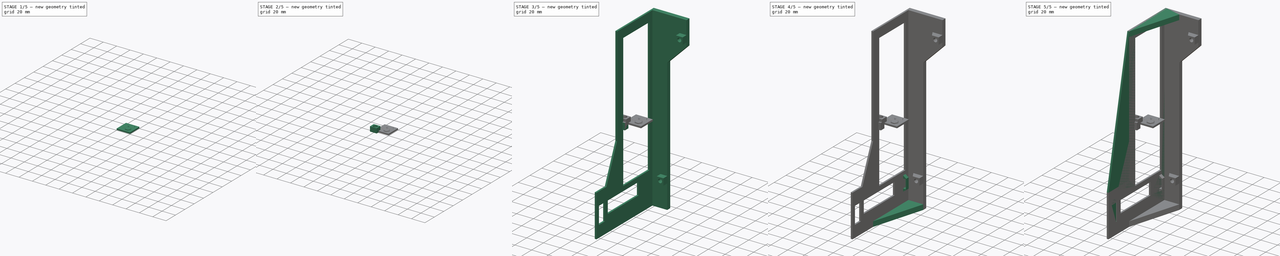
[diagram: build sequence overview — one tinted view per stage of 5, left to right]
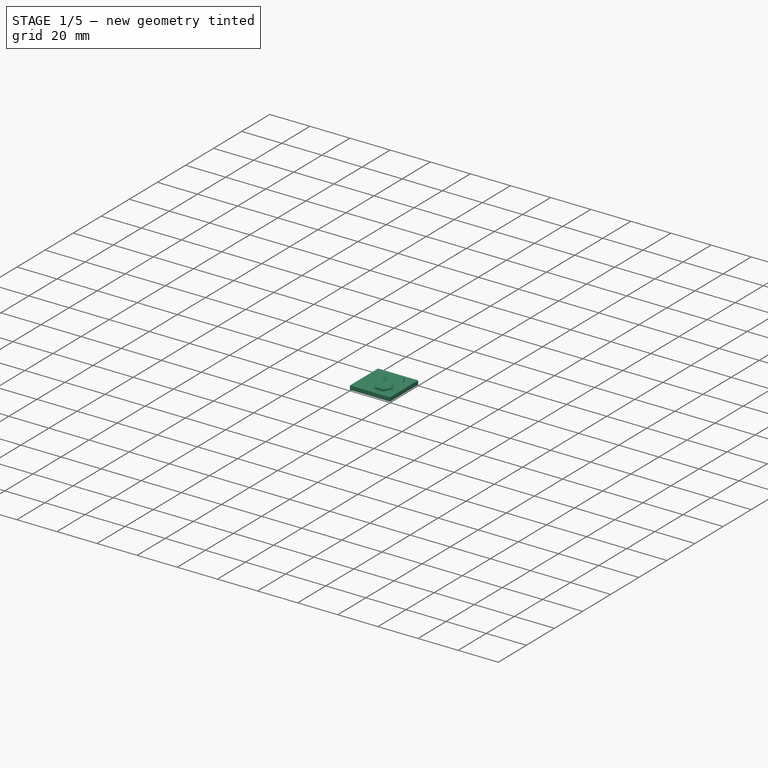
[diagram: stage 1 of 5 — iso view after this stage's code; geometry added in this stage tinted green]
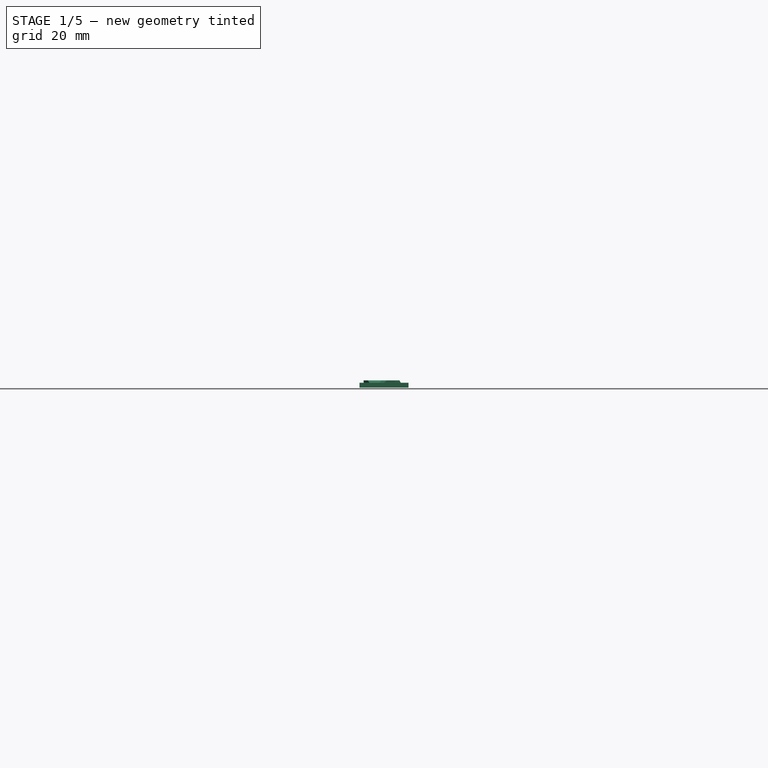
[diagram: stage 1 of 5 — front view after this stage's code; geometry added in this stage tinted green]
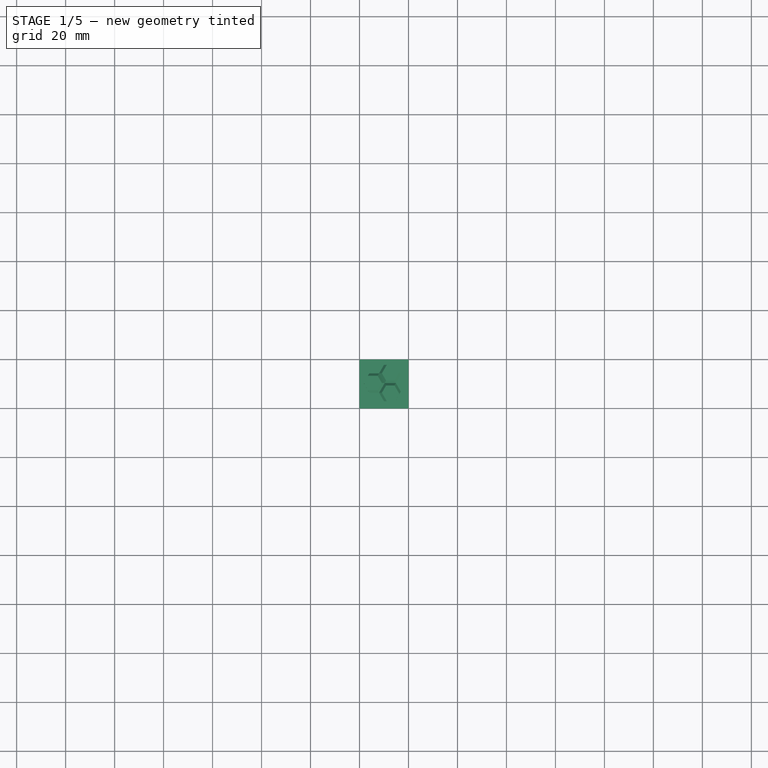
[diagram: stage 1 of 5 — top view after this stage's code; geometry added in this stage tinted green]
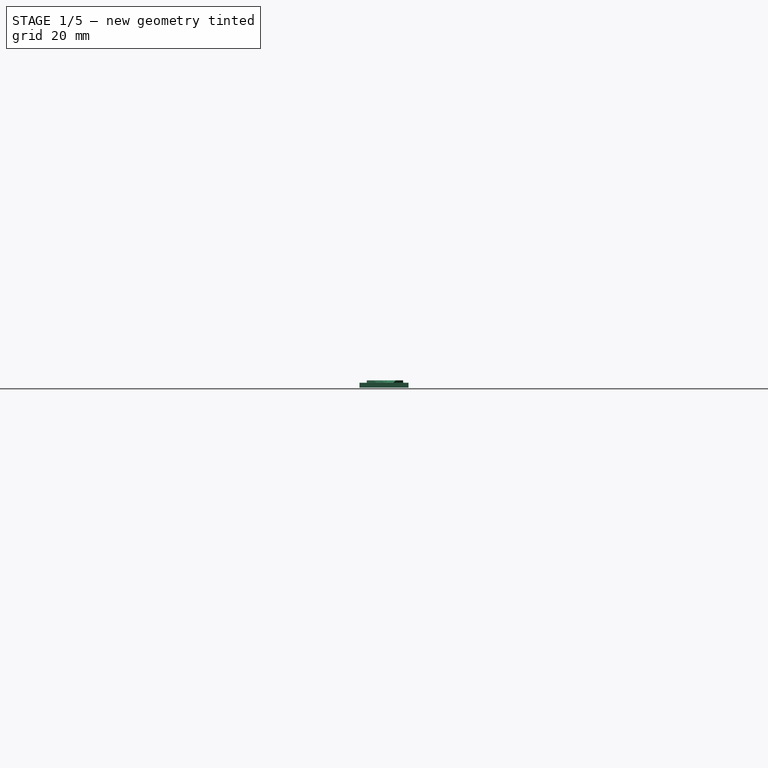
[diagram: stage 1 of 5 — right view after this stage's code; geometry added in this stage tinted green]
FCSTD DOCUMENT  (FreeCAD 1.0RUnknown)
Label: Tests
License: All rights reserved
LicenseURL: https://en.wikipedia.org/wiki/All_rights_reserved
objects: Sketcher::SketchObject×13, PartDesign::Pad×12, PartDesign::Body×7, PartDesign::Draft×2, PartDesign::Pocket×1, PartDesign::AdditiveBox×1, PartDesign::Plane×1
note: 82 computed .brp shape members not serialized (recipe doc carries the construction recipe); baked Part::Feature solids carry a one-line shape summary decoded from their .brp

FEATURE [PartDesign::Body] Body005  label="TolleranceOut"
  AllowCompound = false
  Group = -> [Sketch010,Pad010,Sketch011,Pocket]
  Origin = -> Origin005
  Tip = -> Pocket
FEATURE [PartDesign::AdditiveBox] Box
  AttacherType = Attacher::AttachEngine3D
  AttachmentSupport = -> [XY_Plane006]
  Height = 2
  Length = 20
  MapMode = 5
  Refine = true
  Suppressed = false
  Width = 20
FEATURE [Sketcher::SketchObject] Sketch012
  ArcFitTolerance = 1e-06
  AttachmentSupport = -> [Box]
  FullyConstrained = false
  MakeInternals = false
  MapMode = 5
  Placement = pos=(0,0,2) rot=(0,0,1;0rad)
  sketch-geometry (22):
    g0: LineSegment StartX=7.69917 StartY=6.91829 StartZ=0 EndX=9.69917 EndY=10.3824 EndZ=0
    g1: LineSegment StartX=9.69917 StartY=10.3824 StartZ=0 EndX=7.69917 EndY=13.8465 EndZ=0
    g2: LineSegment StartX=7.69917 StartY=13.8465 StartZ=0 EndX=3.69917 EndY=13.8465 EndZ=0
    g3: LineSegment StartX=3.69917 StartY=13.8465 StartZ=0 EndX=1.69917 EndY=10.3824 EndZ=0
    g4: LineSegment StartX=1.69917 StartY=10.3824 StartZ=0 EndX=3.69917 EndY=6.91829 EndZ=0
    g5: LineSegment StartX=3.69917 StartY=6.91829 StartZ=0 EndX=7.69917 EndY=6.91829 EndZ=0
    g6: Circle [constr] CenterX=5.69917 CenterY=10.3824 CenterZ=0 NormalX=0 NormalY=0 NormalZ=1 AngleXU=0 Radius=4
    g7: LineSegment StartX=14.5652 StartY=10.8824 StartZ=0 EndX=16.5652 EndY=14.3465 EndZ=0
    g8: LineSegment StartX=16.5652 StartY=14.3465 StartZ=0 EndX=14.5652 EndY=17.8106 EndZ=0
    g9: LineSegment StartX=14.5652 StartY=17.8106 StartZ=0 EndX=10.5652 EndY=17.8106 EndZ=0
    g10: LineSegment StartX=10.5652 StartY=17.8106 StartZ=0 EndX=8.56519 EndY=14.3465 EndZ=0
    g11: LineSegment StartX=8.56519 StartY=14.3465 StartZ=0 EndX=10.5652 EndY=10.8824 EndZ=0
    g12: LineSegment StartX=10.5652 StartY=10.8824 StartZ=0 EndX=14.5652 EndY=10.8824 EndZ=0
    g13: Circle [constr] CenterX=12.5652 CenterY=14.3465 CenterZ=0 NormalX=0 NormalY=0 NormalZ=1 AngleXU=0 Radius=4
    g14: LineSegment StartX=14.5652 StartY=2.95419 StartZ=0 EndX=16.5652 EndY=6.41829 EndZ=0
    g15: LineSegment StartX=16.5652 StartY=6.41829 StartZ=0 EndX=14.5652 EndY=9.8824 EndZ=0
    g16: LineSegment StartX=14.5652 StartY=9.8824 StartZ=0 EndX=10.5652 EndY=9.8824 EndZ=0
    g17: LineSegment StartX=10.5652 StartY=9.8824 StartZ=0 EndX=8.56519 EndY=6.41829 EndZ=0
    g18: LineSegment StartX=8.56519 StartY=6.41829 StartZ=0 EndX=10.5652 EndY=2.95419 EndZ=0
    g19: LineSegment StartX=10.5652 StartY=2.95419 StartZ=0 EndX=14.5652 EndY=2.95419 EndZ=0
    g20: Circle [constr] CenterX=12.5652 CenterY=6.41829 CenterZ=0 NormalX=0 NormalY=0 NormalZ=1 AngleXU=0 Radius=4
    g21: LineSegment [constr] StartX=12.5652 StartY=14.3465 StartZ=0 EndX=12.5652 EndY=6.41829 EndZ=0
  constraints (51):
    c: Coincident(g0,g1)
    c: Coincident(g1,g2)
    c: Coincident(g2,g3)
    c: Coincident(g3,g4)
    c: Coincident(g4,g5)
    c: Coincident(g5,g0)
    c: Equal(g0, g1-g5) x5
    c: PointOnObject(g0,g6)
    c: PointOnObject(g1,g6)
    c: PointOnObject(g2,g6)
    c: PointOnObject(g3,g6)
    c: PointOnObject(g4,g6)
    c: PointOnObject(g5,g6)
    c: Horizontal(g2)
    c: Coincident(g7,g8)
    c: Coincident(g8,g9)
    c: Coincident(g9,g10)
    c: Coincident(g10,g11)
    c: Coincident(g11,g12)
    c: Coincident(g12,g7)
    c: Equal(g7, g8-g12) x5
    c: PointOnObject(g7,g13)
    c: PointOnObject(g8,g13)
    c: PointOnObject(g9,g13)
    c: PointOnObject(g10,g13)
    c: PointOnObject(g11,g13)
    c: PointOnObject(g12,g13)
    c: Coincident(g14,g15)
    c: Coincident(g15,g16)
    c: Coincident(g16,g17)
    c: Coincident(g17,g18)
    c: Coincident(g18,g19)
    c: Coincident(g19,g14)
    c: Equal(g14, g15-g19) x5
    c: PointOnObject(g14,g20)
    c: PointOnObject(g15,g20)
    c: PointOnObject(g16,g20)
    c: PointOnObject(g17,g20)
    c: PointOnObject(g18,g20)
    c: PointOnObject(g19,g20)
    c: Horizontal(g16)
    c: Horizontal(g12)
    c: Equal(g5,g16)
    c: Equal(g16,g12)
    c: Distance(g10,g1) = 1
    c: Distance(g0,g17) = 1
    c: Distance(g7,g16) = 1
    c: Coincident(g21,g13)
    c: Coincident(g21,g20)
    c: Vertical(g21)
    c: DistanceX(g9,g9) = 4
FEATURE [PartDesign::Pad] Pad011
  BaseFeature = -> Box
  Direction = (0,0,1)
  Length = 1
  Length2 = 10
  Profile = -> Sketch012
  ReferenceAxis = -> Sketch012 [N_Axis]
  Refine = true
  Suppressed = false
  Type = 0
FEATURE [PartDesign::Plane] DatumPlane
  AttachmentOffset = pos=(0,0,-0.5) rot=(0,0,1;0rad)
  AttachmentSupport = -> [Pad011]
  Length = 60
  MapMode = 5
  Placement = pos=(0,0,2.5) rot=(0,0,1;0rad)
  ResizeMode = 0
  Width = 60
FEATURE [PartDesign::Draft] Draft001
  Angle = 45
  Base = -> Pad011 [Face13,Face14,Face23,Face24,Face9,Face10,Face18,Face11,Face22,Face15,Face19,Face8]
  BaseFeature = -> Pad011
  NeutralPlane = -> DatumPlane
  Refine = true
  SupportTransform = false
  Suppressed = false
FEATURE [PartDesign::Body] Body006  label="HexagonTest"
  AllowCompound = false
  Group = -> [Box,Sketch012,Pad011,DatumPlane,Draft001]
  Origin = -> Origin006
  Tip = -> Draft001
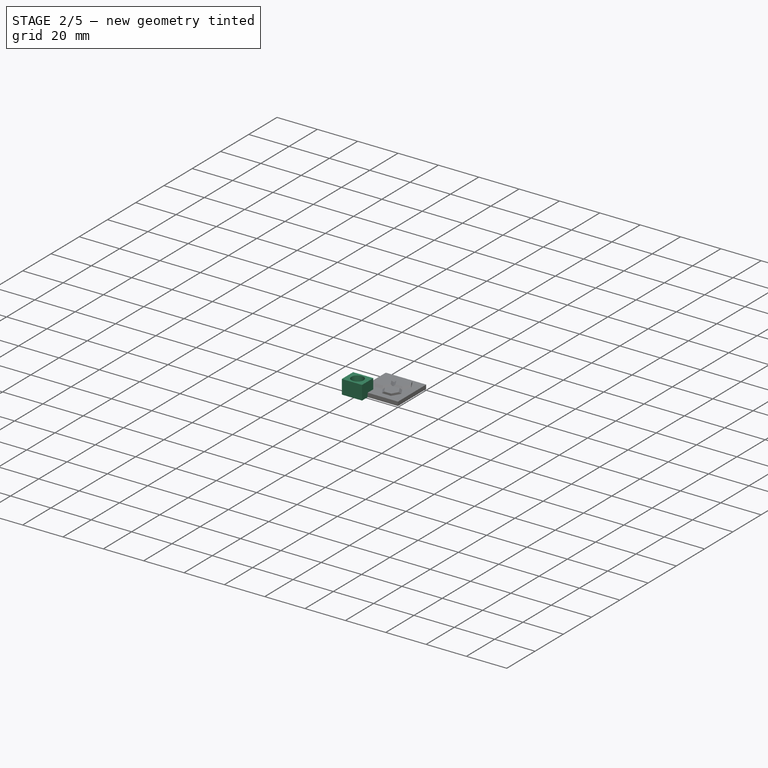
[diagram: stage 2 of 5 — iso view after this stage's code; geometry added in this stage tinted green]
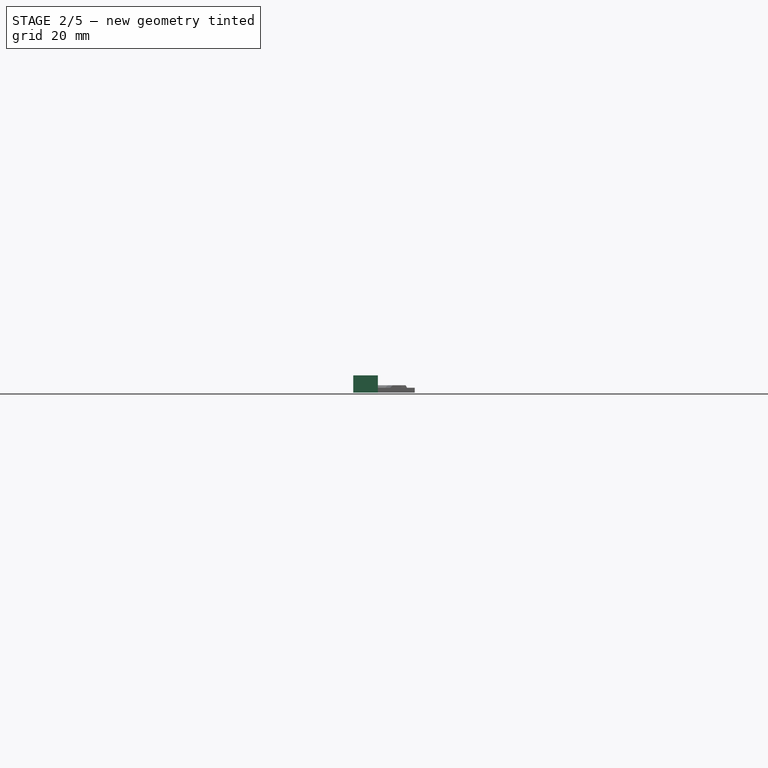
[diagram: stage 2 of 5 — front view after this stage's code; geometry added in this stage tinted green]
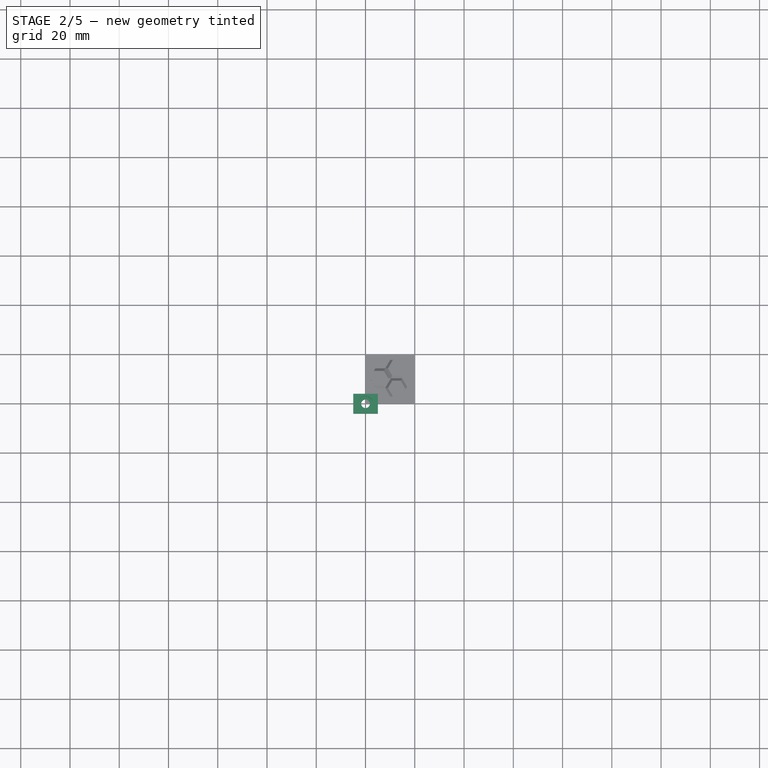
[diagram: stage 2 of 5 — top view after this stage's code; geometry added in this stage tinted green]
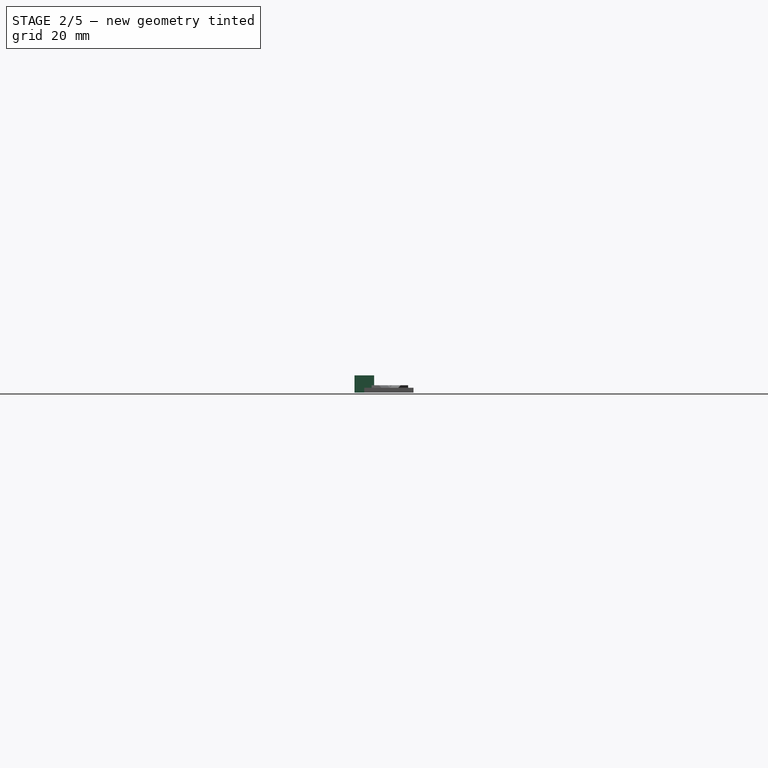
[diagram: stage 2 of 5 — right view after this stage's code; geometry added in this stage tinted green]
FEATURE [PartDesign::Body] Body003  label="TolleranceMount"
  AllowCompound = false
  Group = -> [Sketch008,Pad008]
  Origin = -> Origin003
  Tip = -> Pad008
FEATURE [Sketcher::SketchObject] Sketch009
  ArcFitTolerance = 1e-06
  AttachmentSupport = -> [XY_Plane004]
  FullyConstrained = true
  MakeInternals = false
  MapMode = 5
  sketch-geometry (6):
    g0: LineSegment StartX=-5 StartY=-3.5 StartZ=0 EndX=5 EndY=-3.5 EndZ=0
    g1: LineSegment StartX=5 StartY=-3.5 StartZ=0 EndX=5 EndY=3.5 EndZ=0
    g2: LineSegment StartX=5 StartY=3.5 StartZ=0 EndX=-5 EndY=3.5 EndZ=0
    g3: LineSegment StartX=-5 StartY=3.5 StartZ=0 EndX=-5 EndY=-3.5 EndZ=0
    g4: GeomPoint [constr] X=0 Y=0 Z=0
    g5: Circle CenterX=0 CenterY=0 CenterZ=0 NormalX=0 NormalY=0 NormalZ=1 AngleXU=0 Radius=1.75
  constraints (14):
    c: Coincident(g0,g1)
    c: Coincident(g1,g2)
    c: Coincident(g2,g3)
    c: Coincident(g3,g0)
    c: Horizontal(g0)
    c: Horizontal(g2)
    c: Vertical(g1)
    c: Vertical(g3)
    c: Symmetric(g2,g0,g4)
    c: Distance(g1,g3) = 10
    c: Distance(g0,g2) = 7
    c: Coincident(g4,g-1)
    c: Diameter(g5) = 3.5
    c: Coincident(g5,g4)
FEATURE [PartDesign::Pad] Pad009
  Direction = (0,0,1)
  Length = 2
  Length2 = 10
  Profile = -> Sketch009
  ReferenceAxis = -> Sketch009 [N_Axis]
  Refine = true
  Suppressed = false
  Type = 0
FEATURE [PartDesign::Body] Body004  label="TolleranceMid"
  AllowCompound = false
  Group = -> [Sketch009,Pad009]
  Origin = -> Origin004
  Tip = -> Pad009
FEATURE [Sketcher::SketchObject] Sketch010
  ArcFitTolerance = 1e-06
  AttachmentSupport = -> [XY_Plane005]
  FullyConstrained = true
  MakeInternals = false
  MapMode = 5
  sketch-geometry (6):
    g0: LineSegment StartX=-5 StartY=-4 StartZ=0 EndX=5 EndY=-4 EndZ=0
    g1: LineSegment StartX=5 StartY=-4 StartZ=0 EndX=5 EndY=4 EndZ=0
    g2: LineSegment StartX=5 StartY=4 StartZ=0 EndX=-5 EndY=4 EndZ=0
    g3: LineSegment StartX=-5 StartY=4 StartZ=0 EndX=-5 EndY=-4 EndZ=0
    g4: GeomPoint [constr] X=0 Y=0 Z=0
    g5: Circle CenterX=0 CenterY=0 CenterZ=0 NormalX=0 NormalY=0 NormalZ=1 AngleXU=0 Radius=1.75
  constraints (14):
    c: Coincident(g0,g1)
    c: Coincident(g1,g2)
    c: Coincident(g2,g3)
    c: Coincident(g3,g0)
    c: Horizontal(g0)
    c: Horizontal(g2)
    c: Vertical(g1)
    c: Vertical(g3)
    c: Symmetric(g2,g0,g4)
    c: Distance(g1,g3) = 10
    c: Distance(g0,g2) = 8
    c: Coincident(g4,g-1)
    c: Diameter(g5) = 3.5
    c: Coincident(g5,g4)
FEATURE [PartDesign::Pad] Pad010
  Direction = (0,0,1)
  Length = 7
  Length2 = 10
  Profile = -> Sketch010
  ReferenceAxis = -> Sketch010 [N_Axis]
  Refine = true
  Suppressed = false
  Type = 0
FEATURE [Sketcher::SketchObject] Sketch011
  ArcFitTolerance = 1e-06
  AttachmentSupport = -> [Pad010]
  FullyConstrained = true
  MakeInternals = false
  MapMode = 5
  Placement = pos=(0,0,7) rot=(0,0,1;0rad)
  sketch-geometry (1):
    g0: Circle CenterX=0 CenterY=0 CenterZ=0 NormalX=0 NormalY=0 NormalZ=1 AngleXU=0 Radius=3
  constraints (2):
    c: Diameter(g0) = 6
    c: Coincident(g0,g-1)
FEATURE [PartDesign::Pocket] Pocket
  BaseFeature = -> Pad010
  Direction = (0,0,-1)
  Length = 4
  Length2 = 5
  Profile = -> Sketch011
  ReferenceAxis = -> Sketch011 [N_Axis]
  Refine = true
  Suppressed = false
  Type = 0
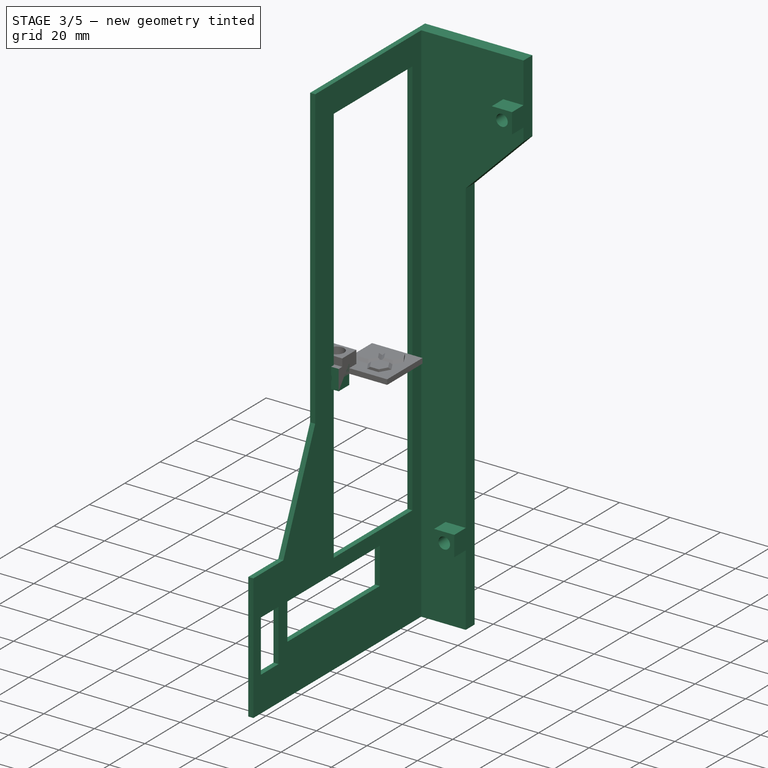
[diagram: stage 3 of 5 — iso view after this stage's code; geometry added in this stage tinted green]
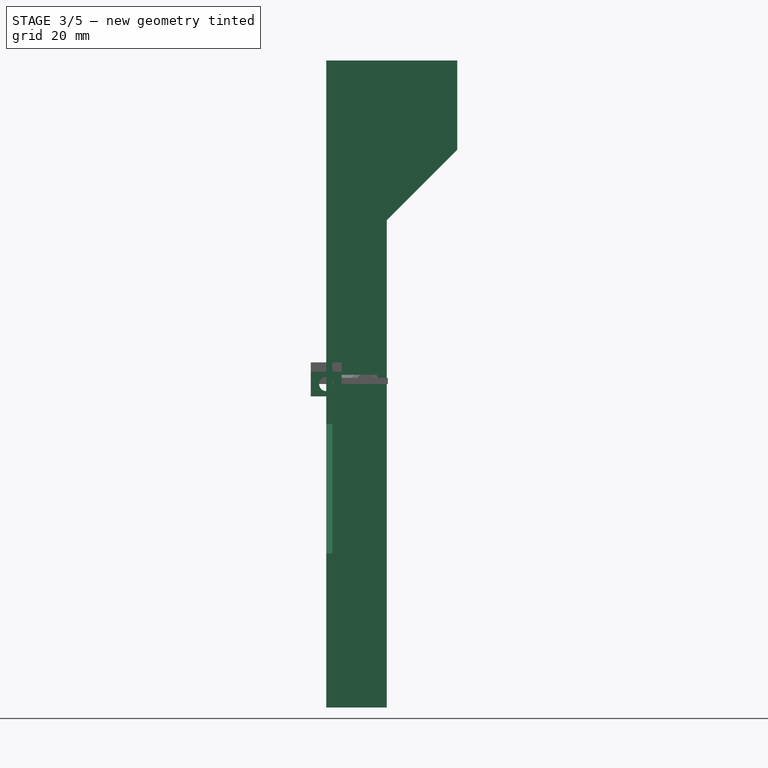
[diagram: stage 3 of 5 — front view after this stage's code; geometry added in this stage tinted green]
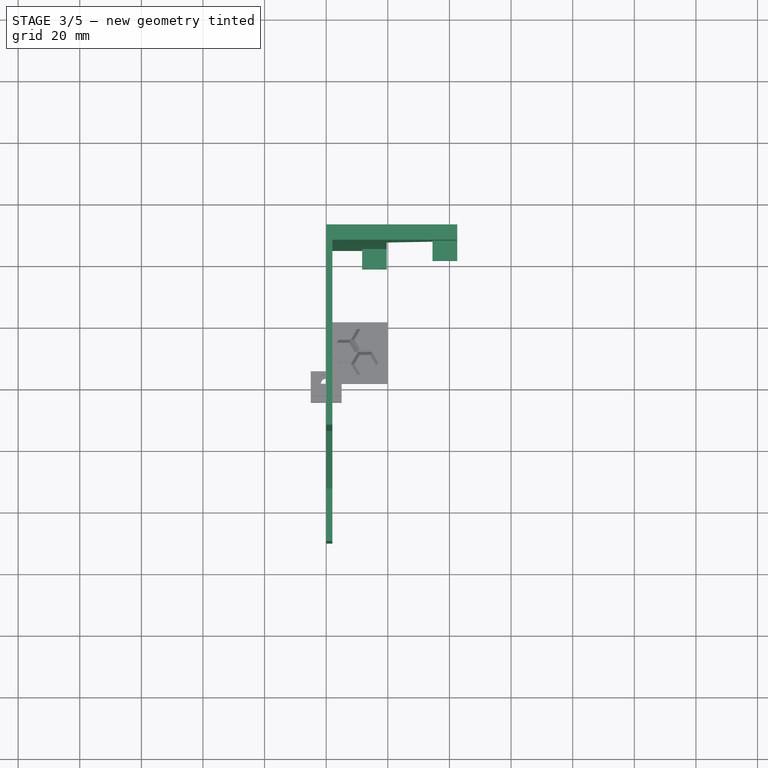
[diagram: stage 3 of 5 — top view after this stage's code; geometry added in this stage tinted green]
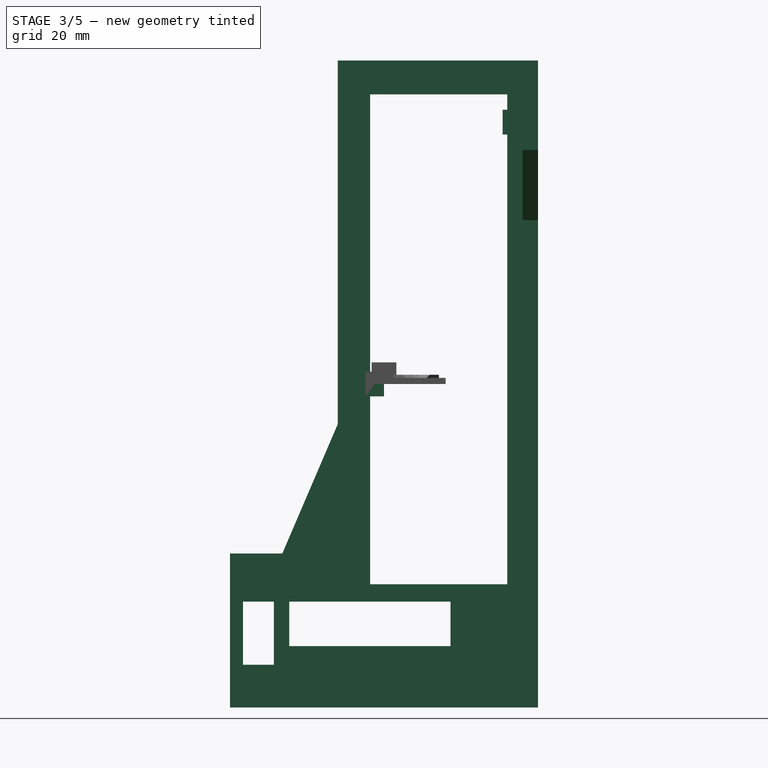
[diagram: stage 3 of 5 — right view after this stage's code; geometry added in this stage tinted green]
FEATURE [PartDesign::Body] Body001  label="PCIMount2"
  AllowCompound = false
  Group = -> [Sketch001,Pad001]
  Origin = -> Origin001
  Tip = -> Pad001
FEATURE [Sketcher::SketchObject] Sketch002
  ArcFitTolerance = 1e-06
  AttachmentSupport = -> [YZ_Plane002]
  FullyConstrained = true
  MakeInternals = false
  MapMode = 5
  Placement = pos=(0,0,0) rot=(0.57735,0.57735,0.57735;2.0944rad)
  sketch-geometry (33):
    g0: LineSegment StartX=-50 StartY=-105 StartZ=0 EndX=50 EndY=-105 EndZ=0
    g1: LineSegment StartX=50 StartY=-105 StartZ=0 EndX=50 EndY=105 EndZ=0
    g2: GeomPoint [constr] X=0 Y=0 Z=0
    g3: LineSegment StartX=40 StartY=94 StartZ=0 EndX=-4.5 EndY=94 EndZ=0
    g4: LineSegment StartX=-4.5 StartY=94 StartZ=0 EndX=-4.5 EndY=-65 EndZ=0
    g5: LineSegment StartX=-4.5 StartY=-65 StartZ=0 EndX=40 EndY=-65 EndZ=0
    g6: LineSegment StartX=40 StartY=-65 StartZ=0 EndX=40 EndY=94 EndZ=0
    g7: LineSegment [constr] StartX=45 StartY=-105 StartZ=0 EndX=45 EndY=105 EndZ=0
    g8: LineSegment [constr] StartX=43.5 StartY=-82.95 StartZ=0 EndX=43.5 EndY=-72.75 EndZ=0
    g9: LineSegment [constr] StartX=43.5 StartY=-72.75 StartZ=0 EndX=35.7 EndY=-72.75 EndZ=0
    g10: LineSegment [constr] StartX=35.7 StartY=-72.75 StartZ=0 EndX=31.59 EndY=-68.64 EndZ=0
    g11: LineSegment [constr] StartX=31.59 StartY=-68.64 StartZ=0 EndX=-36.56 EndY=-68.64 EndZ=0
    g12: LineSegment [constr] StartX=-36.56 StartY=-68.64 StartZ=0 EndX=-36.56 EndY=-90.64 EndZ=0
    g13: LineSegment [constr] StartX=-36.56 StartY=-90.64 StartZ=0 EndX=-34.76 EndY=-90.64 EndZ=0
    g14: LineSegment [constr] StartX=-34.76 StartY=-90.64 StartZ=0 EndX=-34.76 EndY=-87.06 EndZ=0
    g15: LineSegment [constr] StartX=-34.76 StartY=-87.06 StartZ=0 EndX=31.59 EndY=-87.06 EndZ=0
    g16: LineSegment [constr] StartX=31.59 StartY=-87.06 StartZ=0 EndX=35.7 EndY=-82.95 EndZ=0
    g17: LineSegment [constr] StartX=35.7 StartY=-82.95 StartZ=0 EndX=43.5 EndY=-82.95 EndZ=0
    g18: LineSegment StartX=-45.76 StartY=-70.64 StartZ=0 EndX=-45.76 EndY=-91.14 EndZ=0
    g19: LineSegment StartX=-45.76 StartY=-91.14 StartZ=0 EndX=-35.76 EndY=-91.14 EndZ=0
    g20: LineSegment StartX=-35.76 StartY=-91.14 StartZ=0 EndX=-35.76 EndY=-70.64 EndZ=0
    g21: LineSegment StartX=-35.76 StartY=-70.64 StartZ=0 EndX=-45.76 EndY=-70.64 EndZ=0
    g22: LineSegment StartX=-30.76 StartY=-70.64 StartZ=0 EndX=-30.76 EndY=-85.06 EndZ=0
    g23: LineSegment StartX=-30.76 StartY=-85.06 StartZ=0 EndX=21.59 EndY=-85.06 EndZ=0
    g24: LineSegment StartX=21.59 StartY=-85.06 StartZ=0 EndX=21.59 EndY=-70.64 EndZ=0
    g25: LineSegment StartX=21.59 StartY=-70.64 StartZ=0 EndX=-30.76 EndY=-70.64 EndZ=0
    g26: LineSegment StartX=50 StartY=105 StartZ=0 EndX=-15 EndY=105 EndZ=0
    g27: LineSegment StartX=-50 StartY=-55 StartZ=0 EndX=-50 EndY=-105 EndZ=0
    g28: LineSegment [constr] StartX=-50 StartY=-99 StartZ=0 EndX=50 EndY=-99 EndZ=0
    g29: LineSegment [constr] StartX=-15 StartY=99 StartZ=0 EndX=50 EndY=99 EndZ=0
    g30: LineSegment StartX=-15 StartY=105 StartZ=0 EndX=-15 EndY=-13 EndZ=0
    g31: LineSegment StartX=-15 StartY=-13 StartZ=0 EndX=-33 EndY=-55 EndZ=0
    g32: LineSegment StartX=-33 StartY=-55 StartZ=0 EndX=-50 EndY=-55 EndZ=0
  constraints (99):
    c: Coincident(g0,g1)
    c: Coincident(g1,g26)
    c: Coincident(g27,g0)
    c: Horizontal(g0)
    c: Vertical(g1)
    c: Symmetric(g26,g0,g2)
    c: Coincident(g2,g-1)
    c: Coincident(g3,g4)
    c: Coincident(g4,g5)
    c: Coincident(g5,g6)
    c: Coincident(g6,g3)
    c: Horizontal(g3)
    c: Horizontal(g5)
    c: Vertical(g4)
    c: Vertical(g6)
    c: DistanceX(g5,g5) = 44.5
    c: DistanceY(g4,g4) = 159
    c: PointOnObject(g7,g0)
    c: Vertical(g7)
    c: DistanceX(g7,g1) = 5
    c: DistanceX(g3,g7) = 5
    c: Coincident(g8,g9)
    c: Coincident(g9,g10)
    c: Coincident(g10,g11)
    c: Horizontal(g11)
    c: Coincident(g11,g12)
    c: Vertical(g12)
    c: Coincident(g12,g13)
    c: Horizontal(g13)
    c: Coincident(g13,g14)
    c: Vertical(g14)
    c: Coincident(g14,g15)
    c: Horizontal(g15)
    c: Coincident(g15,g16)
    c: Coincident(g16,g17)
    c: Coincident(g17,g8)
    c: Horizontal(g9)
    c: Horizontal(g17)
    c: Vertical(g8)
    c: Distance(g14,g8) = 78.26
    c: DistanceX(g15,g8) = 11.91
    c: Equal(g10,g16)
    c: Equal(g17,g9)
    c: DistanceY(g15,g10) = 18.42
    c: Angle(g11,g10) = 2.35619
    c: DistanceY(g9,g10) = 4.11
    c: DistanceX(g13,g13) = 1.8
    c: DistanceY(g12,g12) = 22
    c: Angle(g16,g15) = 2.35619
    c: DistanceX(g8,g7) = 1.5
    c: DistanceY(g8,g5) = 7.75
    c: Coincident(g18,g19)
    c: Coincident(g19,g20)
    c: Coincident(g20,g21)
    c: Coincident(g21,g18)
    c: Vertical(g18)
    c: Vertical(g20)
    c: Horizontal(g19)
    c: Horizontal(g21)
    c: Coincident(g22,g23)
    c: Coincident(g23,g24)
    c: Coincident(g24,g25)
    c: Coincident(g25,g22)
    c: Vertical(g22)
    c: Vertical(g24)
    c: Horizontal(g23)
    c: Horizontal(g25)
    c: DistanceY(g18,g12) = 0.5
    c: Distance(g22,g11) = 2
    c: Distance(g22,g15) = 2
    c: Distance(g22,g20) = 5
    c: DistanceX(g24,g10) = 10
    c: Coincident(g26,g30)
    c: Horizontal(g26)
    c: PointOnObject(g7,g26)
    c: Vertical(g27)
    c: DistanceX(g0,g0) = 100
    c: PointOnObject(g28,g27)
    c: PointOnObject(g28,g1)
    c: Horizontal(g28)
    c: DistanceY(g28,g5) = 34
    c: DistanceY(g0,g28) = 6
    c: PointOnObject(g29,g1)
    c: Horizontal(g29)
    c: DistanceY(g3,g29) = 5
    c: DistanceY(g29,g1) = 6
    c: DistanceX(g27,g26) = 35
    c: DistanceY(g27,g26) = 160
    c: Coincident(g32,g27)
    c: Coincident(g30,g31)
    c: PointOnObject(g29,g30)
    c: Coincident(g31,g32)
    c: Vertical(g30)
    c: Horizontal(g32)
    c: DistanceX(g31,g30) = 18
    c: DistanceY(g31,g30) = 42
    c: Distance(g20,g14) = 1
    c: DistanceX(g21,g21) = 10
    c: DistanceY(g20,g11) = 2
FEATURE [PartDesign::Pad] Pad002
  Direction = (1,0,0)
  Length = 2
  Length2 = 10
  Placement = pos=(0,0,0) rot=(1,1,1;2.0944rad)
  Profile = -> Sketch002
  ReferenceAxis = -> Sketch002 [N_Axis]
  Refine = true
  Suppressed = false
  Type = 0
FEATURE [Sketcher::SketchObject] Sketch003
  ArcFitTolerance = 1e-06
  AttachmentSupport = -> [Pad002]
  ExternalGeometry = -> [Pad002]
  FullyConstrained = true
  MakeInternals = false
  MapMode = 5
  Placement = pos=(1.1e-14,50,0) rot=(0.57735,0.57735,-0.57735;2.0944rad)
  sketch-geometry (6):
    g0: LineSegment StartX=-105 StartY=2 StartZ=0 EndX=-105 EndY=42.52 EndZ=0
    g1: LineSegment StartX=-105 StartY=42.52 StartZ=0 EndX=-76 EndY=42.52 EndZ=0
    g2: LineSegment StartX=-76 StartY=42.52 StartZ=0 EndX=-53.14 EndY=19.66 EndZ=0
    g3: LineSegment StartX=-53.14 StartY=19.66 StartZ=0 EndX=105 EndY=19.66 EndZ=0
    g4: LineSegment StartX=105 StartY=19.66 StartZ=0 EndX=105 EndY=2 EndZ=0
    g5: LineSegment StartX=105 StartY=2 StartZ=0 EndX=-105 EndY=2 EndZ=0
  constraints (16):
    c: Coincident(g-4,g0)
    c: Vertical(g0)
    c: Coincident(g0,g1)
    c: Horizontal(g1)
    c: Coincident(g1,g2)
    c: Coincident(g2,g3)
    c: Horizontal(g3)
    c: Coincident(g3,g4)
    c: Coincident(g4,g-4)
    c: Coincident(g4,g5)
    c: Coincident(g5,g0)
    c: Vertical(g4)
    c: DistanceY(g4,g4) = 17.66
    c: DistanceY(g2,g1) = 22.86
    c: DistanceX(g1,g-3) = 141
    c: Angle(g1,g2) = 2.35619
FEATURE [PartDesign::Pad] Pad003
  BaseFeature = -> Pad002
  Direction = (0,-1,0)
  Length = 5
  Length2 = 10
  Placement = pos=(0,0,0) rot=(1,1,1;2.0944rad)
  Profile = -> Sketch003
  ReferenceAxis = -> Sketch003 [N_Axis]
  Refine = true
  Suppressed = false
  Type = 0
FEATURE [Sketcher::SketchObject] Sketch004
  ArcFitTolerance = 1e-06
  AttachmentSupport = -> [Pad003]
  ExternalGeometry = -> [Pad003]
  FullyConstrained = true
  MakeInternals = false
  MapMode = 5
  Placement = pos=(0,45,0) rot=(0.57735,0.57735,-0.57735;2.0944rad)
  sketch-geometry (12):
    g0: Circle CenterX=72.5 CenterY=15.66 CenterZ=0 NormalX=0 NormalY=0 NormalZ=1 AngleXU=0 Radius=2.3
    g1: Circle CenterX=-85 CenterY=38.52 CenterZ=0 NormalX=0 NormalY=0 NormalZ=1 AngleXU=0 Radius=2.3
    g2: LineSegment StartX=68.5 StartY=11.66 StartZ=0 EndX=76.5 EndY=11.66 EndZ=0
    g3: LineSegment StartX=76.5 StartY=11.66 StartZ=0 EndX=76.5 EndY=19.66 EndZ=0
    g4: LineSegment StartX=76.5 StartY=19.66 StartZ=0 EndX=68.5 EndY=19.66 EndZ=0
    g5: LineSegment StartX=68.5 StartY=19.66 StartZ=0 EndX=68.5 EndY=11.66 EndZ=0
    g6: GeomPoint [constr] X=72.5 Y=15.66 Z=0
    g7: LineSegment StartX=-89 StartY=34.52 StartZ=0 EndX=-81 EndY=34.52 EndZ=0
    g8: LineSegment StartX=-81 StartY=34.52 StartZ=0 EndX=-81 EndY=42.52 EndZ=0
    g9: LineSegment StartX=-81 StartY=42.52 StartZ=0 EndX=-89 EndY=42.52 EndZ=0
    g10: LineSegment StartX=-89 StartY=42.52 StartZ=0 EndX=-89 EndY=34.52 EndZ=0
    g11: GeomPoint [constr] X=-85 Y=38.52 Z=0
  constraints (30):
    c: Diameter(g0) = 4.6
    c: Diameter(g1) = 4.6
    c: DistanceX(g-3,g0) = 7.5
    c: DistanceY(g-3,g0) = 13.66
    c: Coincident(g2,g3)
    c: Coincident(g3,g4)
    c: Coincident(g4,g5)
    c: Coincident(g5,g2)
    c: Horizontal(g2)
    c: Horizontal(g4)
    c: Vertical(g3)
    c: Vertical(g5)
    c: Symmetric(g4,g2,g6)
    c: Distance(g3,g5) = 8
    c: Distance(g2,g4) = 8
    c: Coincident(g6,g0)
    c: DistanceX(g1,g0) = 157.5
    c: DistanceY(g0,g1) = 22.86
    c: Coincident(g7,g8)
    c: Coincident(g8,g9)
    c: Coincident(g9,g10)
    c: Coincident(g10,g7)
    c: Horizontal(g7)
    c: Horizontal(g9)
    c: Vertical(g8)
    c: Vertical(g10)
    c: Symmetric(g9,g7,g11)
    c: Distance(g8,g10) = 8
    c: Distance(g7,g9) = 8
    c: Coincident(g11,g1)
FEATURE [PartDesign::Pad] Pad004
  BaseFeature = -> Pad003
  Direction = (0,-1,0)
  Length = 6.5
  Length2 = 10
  Placement = pos=(0,0,0) rot=(1,1,1;2.0944rad)
  Profile = -> Sketch004
  ReferenceAxis = -> Sketch004 [N_Axis]
  Refine = true
  Suppressed = false
  Type = 0
FEATURE [PartDesign::Body] Body002  label="PCIMount3"
  AllowCompound = false
  Group = -> [Sketch002,Pad002,Sketch003,Pad003,Sketch004,Pad004,Draft,Sketch005,Pad005,Sketch006,Pad006,Sketch007,Pad007]
  Origin = -> Origin002
  Tip = -> Pad007
FEATURE [Sketcher::SketchObject] Sketch008
  ArcFitTolerance = 1e-06
  AttachmentSupport = -> [XZ_Plane003]
  FullyConstrained = true
  MakeInternals = false
  MapMode = 5
  Placement = pos=(0,0,0) rot=(1,0,0;1.5708rad)
  sketch-geometry (6):
    g0: LineSegment StartX=-5 StartY=-4 StartZ=0 EndX=5 EndY=-4 EndZ=0
    g1: LineSegment StartX=5 StartY=-4 StartZ=0 EndX=5 EndY=4 EndZ=0
    g2: LineSegment StartX=5 StartY=4 StartZ=0 EndX=-5 EndY=4 EndZ=0
    g3: LineSegment StartX=-5 StartY=4 StartZ=0 EndX=-5 EndY=-4 EndZ=0
    g4: GeomPoint [constr] X=0 Y=0 Z=0
    g5: Circle CenterX=0 CenterY=0 CenterZ=0 NormalX=0 NormalY=0 NormalZ=1 AngleXU=0 Radius=2.3
  constraints (14):
    c: Coincident(g0,g1)
    c: Coincident(g1,g2)
    c: Coincident(g2,g3)
    c: Coincident(g3,g0)
    c: Horizontal(g0)
    c: Horizontal(g2)
    c: Vertical(g1)
    c: Vertical(g3)
    c: Symmetric(g2,g0,g4)
    c: Distance(g1,g3) = 10
    c: Distance(g0,g2) = 8
    c: Coincident(g4,g-1)
    c: Diameter(g5) = 4.6
    c: Coincident(g5,g4)
FEATURE [PartDesign::Pad] Pad008
  Direction = (0,-1,2e-16)
  Length = 6
  Length2 = 10
  Placement = pos=(0,0,0) rot=(1,0,0;1.5708rad)
  Profile = -> Sketch008
  ReferenceAxis = -> Sketch008 [N_Axis]
  Refine = true
  Suppressed = false
  Type = 0
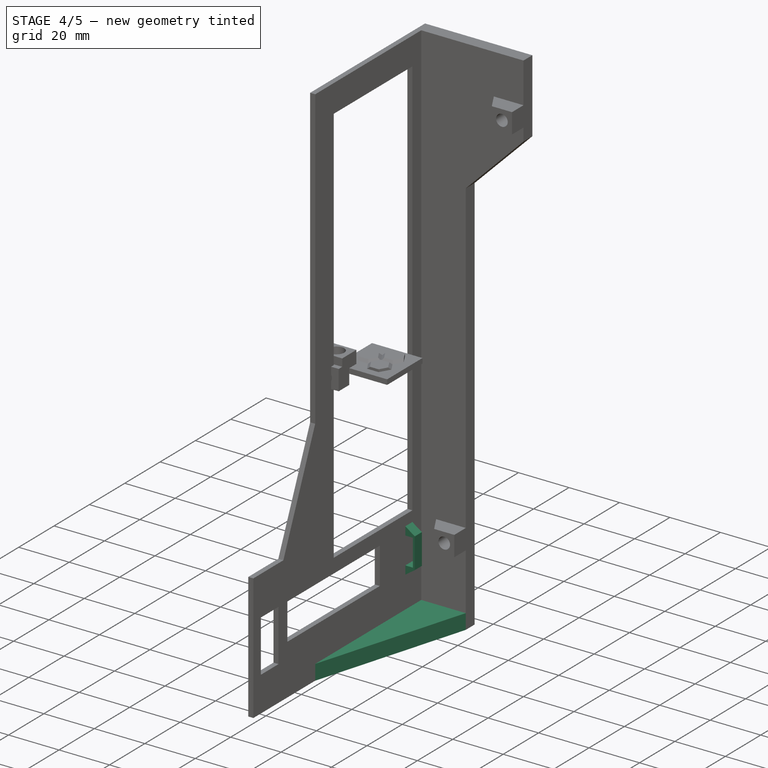
[diagram: stage 4 of 5 — iso view after this stage's code; geometry added in this stage tinted green]
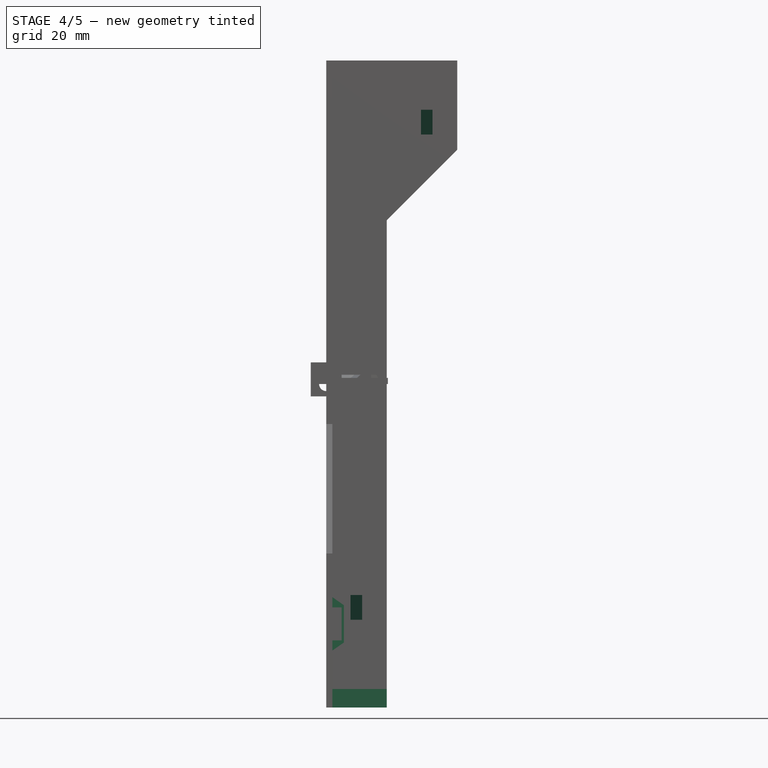
[diagram: stage 4 of 5 — front view after this stage's code; geometry added in this stage tinted green]
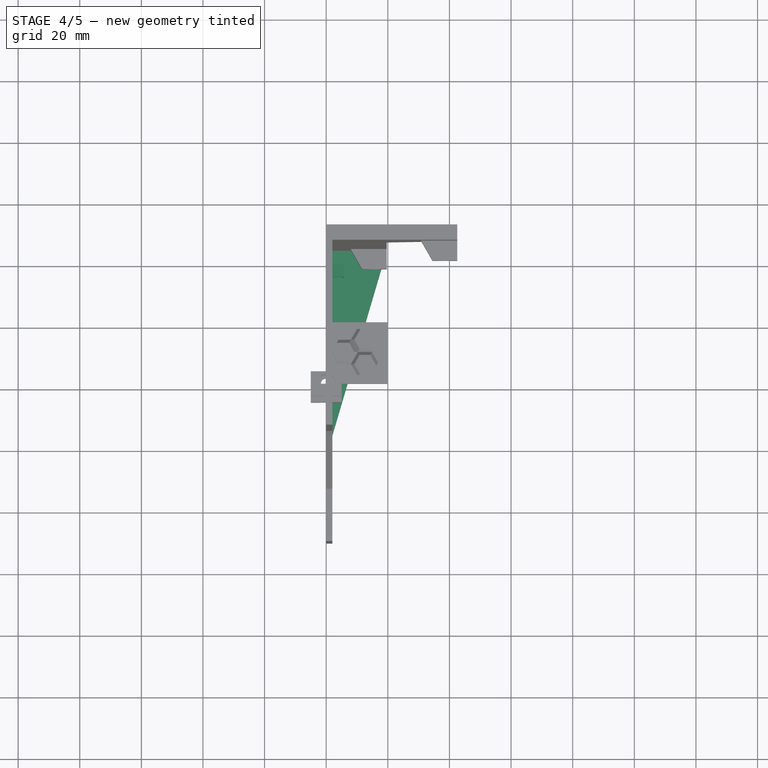
[diagram: stage 4 of 5 — top view after this stage's code; geometry added in this stage tinted green]
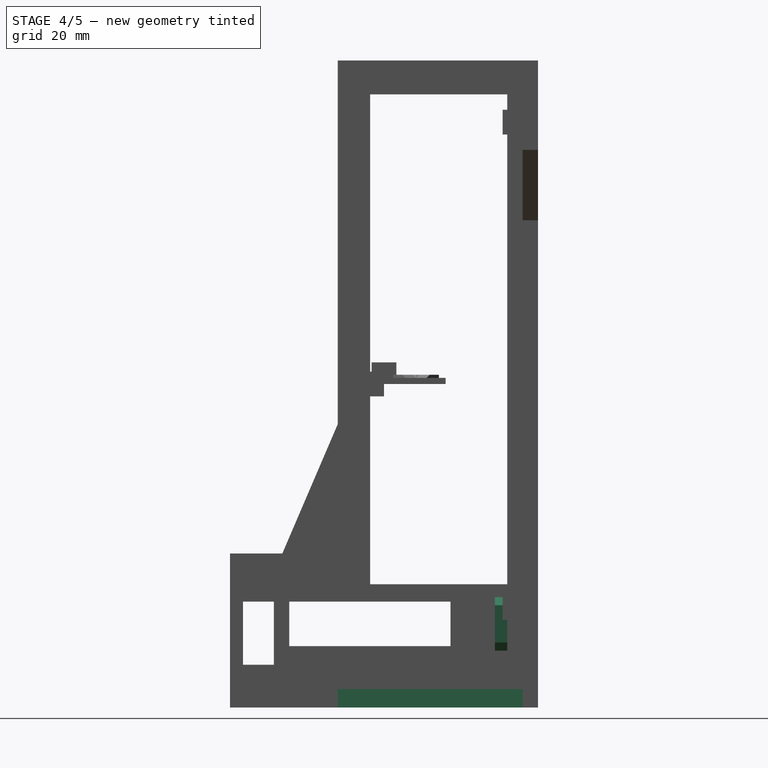
[diagram: stage 4 of 5 — right view after this stage's code; geometry added in this stage tinted green]
FEATURE [PartDesign::Draft] Draft
  Angle = 30
  Base = -> Pad004 [Face28,Face25]
  BaseFeature = -> Pad004
  NeutralPlane = -> Pad004 [Face31]
  Placement = pos=(0,0,0) rot=(1,1,1;2.0944rad)
  Refine = true
  Reversed = true
  SupportTransform = false
  Suppressed = false
FEATURE [Sketcher::SketchObject] Sketch005
  ArcFitTolerance = 1e-06
  AttachmentSupport = -> [Draft]
  ExternalGeometry = -> [Draft]
  FullyConstrained = true
  MakeInternals = false
  MapMode = 5
  Placement = pos=(8.8e-15,40,0) rot=(0.57735,0.57735,-0.57735;2.0944rad)
  sketch-geometry (8):
    g0: LineSegment StartX=69.1786 StartY=2 StartZ=0 EndX=72.5 EndY=2 EndZ=0
    g1: LineSegment StartX=72.5 StartY=2 StartZ=0 EndX=72.5 EndY=5 EndZ=0
    g2: LineSegment StartX=72.5 StartY=5 StartZ=0 EndX=83.2 EndY=5 EndZ=0
    g3: LineSegment StartX=83.2 StartY=5 StartZ=0 EndX=83.2 EndY=2 EndZ=0
    g4: LineSegment StartX=83.2 StartY=2 StartZ=0 EndX=86.5214 EndY=2 EndZ=0
    g5: LineSegment StartX=86.5214 StartY=2 StartZ=0 EndX=83.8956 EndY=5.75 EndZ=0
    g6: LineSegment StartX=83.8956 StartY=5.75 StartZ=0 EndX=71.8044 EndY=5.75 EndZ=0
    g7: LineSegment StartX=71.8044 StartY=5.75 StartZ=0 EndX=69.1786 EndY=2 EndZ=0
  constraints (24):
    c: Horizontal(g0)
    c: Coincident(g0,g1)
    c: Coincident(g1,g2)
    c: Horizontal(g2)
    c: Coincident(g2,g3)
    c: Coincident(g3,g4)
    c: Horizontal(g4)
    c: Coincident(g4,g5)
    c: Coincident(g5,g6)
    c: Horizontal(g6)
    c: Coincident(g6,g7)
    c: Coincident(g7,g0)
    c: Vertical(g1)
    c: Vertical(g3)
    c: DistanceX(g2,g2) = 10.7
    c: PointOnObject(g0,g-4)
    c: PointOnObject(g3,g-4)
    c: DistanceX(g-3,g0) = 7.5
    c: Distance(g6,g2) = 0.75
    c: DistanceY(g3,g3) = 3
    c: Angle(g0,g7) = 0.959931
    c: Angle(g5,g4) = 0.959931
    c: Distance(g1,g7) = 1
    c: Distance(g2,g5) = 1
FEATURE [PartDesign::Pad] Pad005
  BaseFeature = -> Draft
  Direction = (0,-1,0)
  Length = 4
  Length2 = 10
  Placement = pos=(0,0,0) rot=(1,1,1;2.0944rad)
  Profile = -> Sketch005
  ReferenceAxis = -> Sketch005 [N_Axis]
  Refine = true
  Suppressed = false
  Type = 0
FEATURE [Sketcher::SketchObject] Sketch006
  ArcFitTolerance = 1e-06
  AttachmentSupport = -> [Pad005]
  ExternalGeometry = -> [Pad005]
  FullyConstrained = true
  MakeInternals = false
  MapMode = 5
  Placement = pos=(1.376e-13,-5.67e-14,-105) rot=(0.707107,0.707107,0;3.14159rad)
  sketch-geometry (3):
    g0: LineSegment StartX=45 StartY=19.66 StartZ=0 EndX=-15 EndY=2 EndZ=0
    g1: LineSegment StartX=-15 StartY=2 StartZ=0 EndX=45 EndY=2 EndZ=0
    g2: LineSegment StartX=45 StartY=2 StartZ=0 EndX=45 EndY=19.66 EndZ=0
  constraints (6):
    c: Coincident(g-3,g0)
    c: Coincident(g0,g-4)
    c: Coincident(g0,g1)
    c: Coincident(g1,g-4)
    c: Coincident(g1,g2)
    c: Coincident(g2,g0)
FEATURE [PartDesign::Pad] Pad006
  BaseFeature = -> Pad005
  Direction = (2.1e-15,0,-1)
  Length = 6
  Length2 = 10
  Placement = pos=(0,0,0) rot=(1,1,1;2.0944rad)
  Profile = -> Sketch006
  ReferenceAxis = -> Sketch006 [N_Axis]
  Refine = true
  Reversed = true
  Suppressed = false
  Type = 0
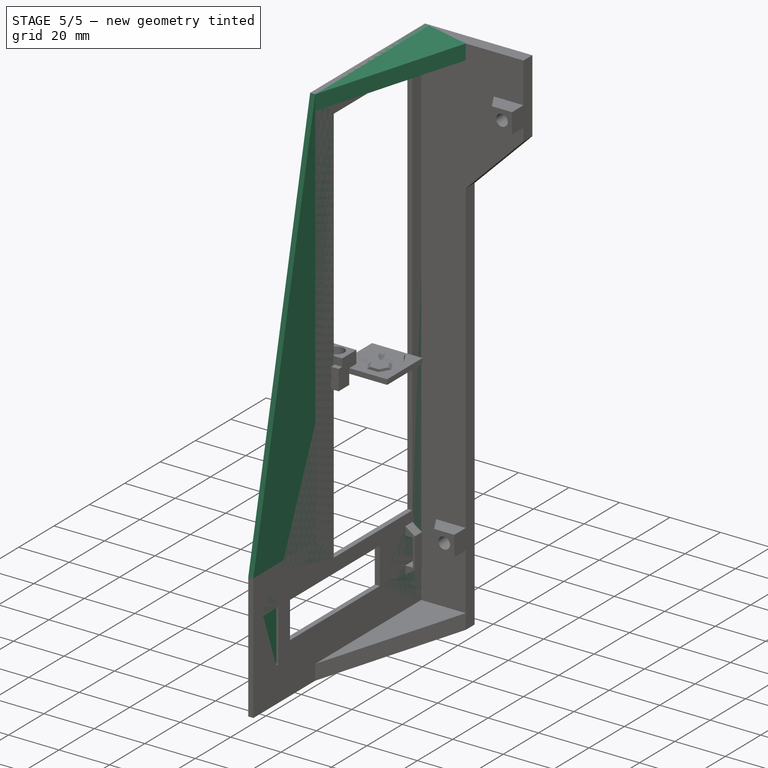
[diagram: stage 5 of 5 — iso view after this stage's code; geometry added in this stage tinted green]
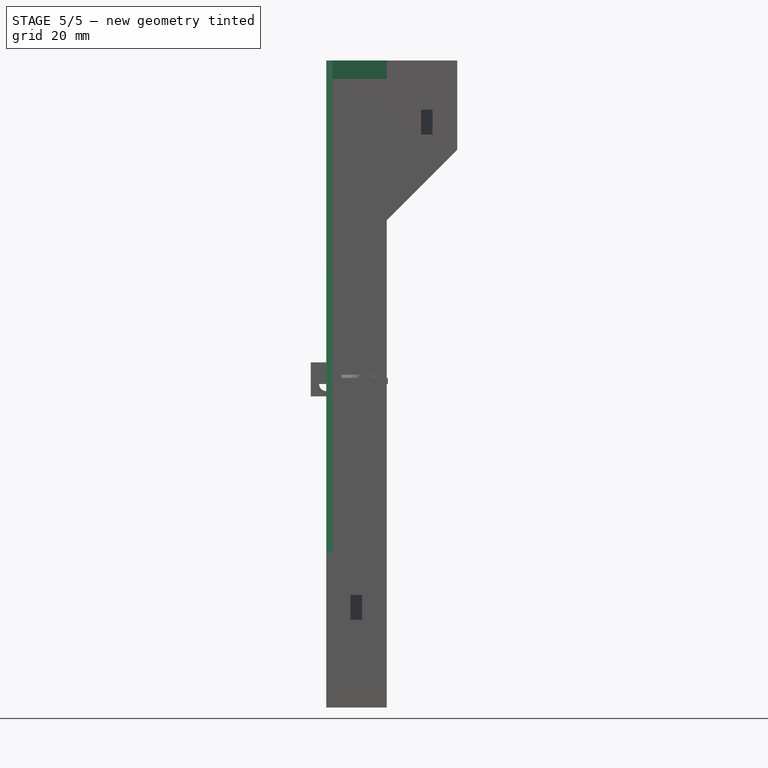
[diagram: stage 5 of 5 — front view after this stage's code; geometry added in this stage tinted green]
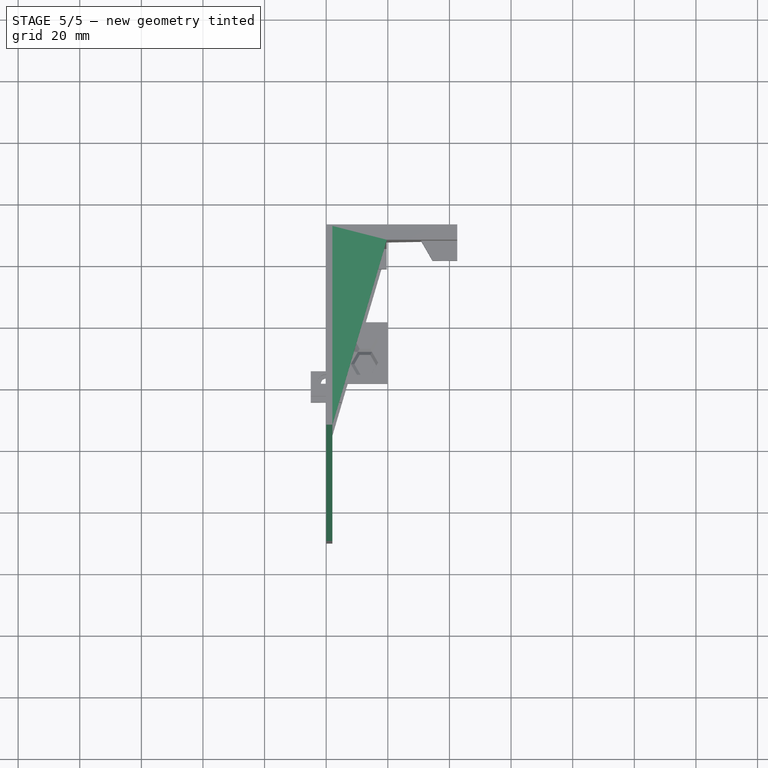
[diagram: stage 5 of 5 — top view after this stage's code; geometry added in this stage tinted green]
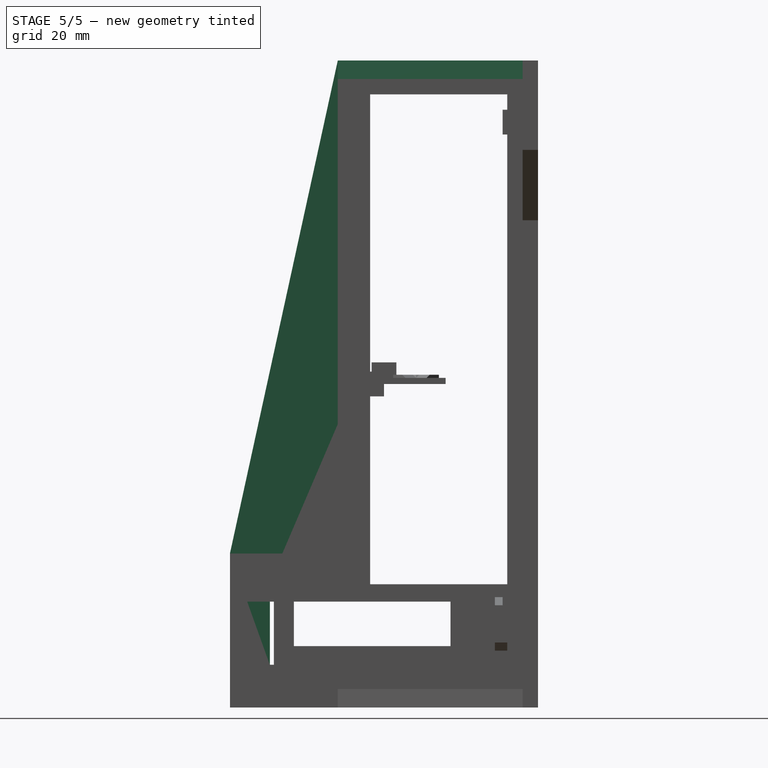
[diagram: stage 5 of 5 — right view after this stage's code; geometry added in this stage tinted green]
FEATURE [Sketcher::SketchObject] Sketch
  ArcFitTolerance = 1e-06
  AttachmentSupport = -> [YZ_Plane]
  FullyConstrained = true
  MakeInternals = false
  MapMode = 5
  Placement = pos=(0,0,0) rot=(0.57735,0.57735,0.57735;2.0944rad)
  sketch-geometry (32):
    g0: LineSegment StartX=-50 StartY=-105 StartZ=0 EndX=50 EndY=-105 EndZ=0
    g1: LineSegment StartX=50 StartY=-105 StartZ=0 EndX=50 EndY=105 EndZ=0
    g2: GeomPoint [constr] X=0 Y=0 Z=0
    g3: LineSegment StartX=40 StartY=94 StartZ=0 EndX=-4.5 EndY=94 EndZ=0
    g4: LineSegment StartX=-4.5 StartY=94 StartZ=0 EndX=-4.5 EndY=-65 EndZ=0
    g5: LineSegment StartX=-4.5 StartY=-65 StartZ=0 EndX=40 EndY=-65 EndZ=0
    g6: LineSegment StartX=40 StartY=-65 StartZ=0 EndX=40 EndY=94 EndZ=0
    g7: LineSegment [constr] StartX=45 StartY=-105 StartZ=0 EndX=45 EndY=105 EndZ=0
    g8: LineSegment [constr] StartX=43.5 StartY=-82.95 StartZ=0 EndX=43.5 EndY=-72.75 EndZ=0
    g9: LineSegment [constr] StartX=43.5 StartY=-72.75 StartZ=0 EndX=35.7 EndY=-72.75 EndZ=0
    g10: LineSegment [constr] StartX=35.7 StartY=-72.75 StartZ=0 EndX=31.59 EndY=-68.64 EndZ=0
    g11: LineSegment [constr] StartX=31.59 StartY=-68.64 StartZ=0 EndX=-36.56 EndY=-68.64 EndZ=0
    g12: LineSegment [constr] StartX=-36.56 StartY=-68.64 StartZ=0 EndX=-36.56 EndY=-90.64 EndZ=0
    g13: LineSegment [constr] StartX=-36.56 StartY=-90.64 StartZ=0 EndX=-34.76 EndY=-90.64 EndZ=0
    g14: LineSegment [constr] StartX=-34.76 StartY=-90.64 StartZ=0 EndX=-34.76 EndY=-87.06 EndZ=0
    g15: LineSegment [constr] StartX=-34.76 StartY=-87.06 StartZ=0 EndX=31.59 EndY=-87.06 EndZ=0
    g16: LineSegment [constr] StartX=31.59 StartY=-87.06 StartZ=0 EndX=35.7 EndY=-82.95 EndZ=0
    g17: LineSegment [constr] StartX=35.7 StartY=-82.95 StartZ=0 EndX=43.5 EndY=-82.95 EndZ=0
    g18: LineSegment StartX=-37.06 StartY=-68.14 StartZ=0 EndX=-37.06 EndY=-91.14 EndZ=0
    g19: LineSegment StartX=-37.06 StartY=-91.14 StartZ=0 EndX=-34.26 EndY=-91.14 EndZ=0
    g20: LineSegment StartX=-34.26 StartY=-91.14 StartZ=0 EndX=-34.26 EndY=-68.14 EndZ=0
    g21: LineSegment StartX=-34.26 StartY=-68.14 StartZ=0 EndX=-37.06 EndY=-68.14 EndZ=0
    g22: LineSegment StartX=-29.26 StartY=-70.64 StartZ=0 EndX=-29.26 EndY=-85.06 EndZ=0
    g23: LineSegment StartX=-29.26 StartY=-85.06 StartZ=0 EndX=21.59 EndY=-85.06 EndZ=0
    g24: LineSegment StartX=21.59 StartY=-85.06 StartZ=0 EndX=21.59 EndY=-70.64 EndZ=0
    g25: LineSegment StartX=21.59 StartY=-70.64 StartZ=0 EndX=-29.26 EndY=-70.64 EndZ=0
    g26: LineSegment StartX=50 StartY=105 StartZ=0 EndX=-15 EndY=105 EndZ=0
    g27: LineSegment StartX=-15 StartY=105 StartZ=0 EndX=-15 EndY=-55 EndZ=0
    g28: LineSegment StartX=-15 StartY=-55 StartZ=0 EndX=-50 EndY=-55 EndZ=0
    g29: LineSegment StartX=-50 StartY=-55 StartZ=0 EndX=-50 EndY=-105 EndZ=0
    g30: LineSegment [constr] StartX=-50 StartY=-99 StartZ=0 EndX=50 EndY=-99 EndZ=0
    g31: LineSegment [constr] StartX=-15 StartY=99 StartZ=0 EndX=50 EndY=99 EndZ=0
  constraints (96):
    c: Coincident(g0,g1)
    c: Coincident(g1,g26)
    c: Coincident(g27,g28)
    c: Coincident(g29,g0)
    c: Horizontal(g0)
    c: Vertical(g1)
    c: Symmetric(g26,g0,g2)
    c: Coincident(g2,g-1)
    c: Coincident(g3,g4)
    c: Coincident(g4,g5)
    c: Coincident(g5,g6)
    c: Coincident(g6,g3)
    c: Horizontal(g3)
    c: Horizontal(g5)
    c: Vertical(g4)
    c: Vertical(g6)
    c: DistanceX(g5,g5) = 44.5
    c: DistanceY(g4,g4) = 159
    c: PointOnObject(g7,g0)
    c: Vertical(g7)
    c: DistanceX(g7,g1) = 5
    c: DistanceX(g3,g7) = 5
    c: Coincident(g8,g9)
    c: Coincident(g9,g10)
    c: Coincident(g10,g11)
    c: Horizontal(g11)
    c: Coincident(g11,g12)
    c: Vertical(g12)
    c: Coincident(g12,g13)
    c: Horizontal(g13)
    c: Coincident(g13,g14)
    c: Vertical(g14)
    c: Coincident(g14,g15)
    c: Horizontal(g15)
    c: Coincident(g15,g16)
    c: Coincident(g16,g17)
    c: Coincident(g17,g8)
    c: Horizontal(g9)
    c: Horizontal(g17)
    c: Vertical(g8)
    c: Distance(g14,g8) = 78.26
    c: DistanceX(g15,g8) = 11.91
    c: Equal(g10,g16)
    c: Equal(g17,g9)
    c: DistanceY(g15,g10) = 18.42
    c: Angle(g11,g10) = 2.35619
    c: DistanceY(g9,g10) = 4.11
    c: DistanceX(g13,g13) = 1.8
    c: DistanceY(g12,g12) = 22
    c: Angle(g16,g15) = 2.35619
    c: DistanceX(g8,g7) = 1.5
    c: DistanceY(g8,g5) = 7.75
    c: Coincident(g18,g19)
    c: Coincident(g19,g20)
    c: Coincident(g20,g21)
    c: Coincident(g21,g18)
    c: Vertical(g18)
    c: Vertical(g20)
    c: Horizontal(g19)
    c: Horizontal(g21)
    c: Coincident(g22,g23)
    c: Coincident(g23,g24)
    c: Coincident(g24,g25)
    c: Coincident(g25,g22)
    c: Vertical(g22)
    c: Vertical(g24)
    c: Horizontal(g23)
    c: Horizontal(g25)
    c: DistanceX(g18,g11) = 0.5
    c: DistanceY(g11,g18) = 0.5
    c: DistanceY(g18,g12) = 0.5
    c: DistanceX(g13,g19) = 0.5
    c: Distance(g22,g11) = 2
    c: Distance(g22,g15) = 2
    c: Distance(g22,g20) = 5
    c: DistanceX(g24,g10) = 10
    c: Coincident(g26,g27)
    c: Horizontal(g26)
    c: PointOnObject(g7,g26)
    c: Coincident(g28,g29)
    c: Vertical(g29)
    c: Horizontal(g28)
    c: Vertical(g27)
    c: DistanceX(g0,g0) = 100
    c: DistanceY(g27,g27) = 160
    c: DistanceX(g28,g28) = 35
    c: PointOnObject(g30,g29)
    c: PointOnObject(g30,g1)
    c: Horizontal(g30)
    c: DistanceY(g30,g5) = 34
    c: DistanceY(g0,g30) = 6
    c: PointOnObject(g31,g27)
    c: PointOnObject(g31,g1)
    c: Horizontal(g31)
    c: DistanceY(g3,g31) = 5
    c: DistanceY(g31,g1) = 6
FEATURE [PartDesign::Pad] Pad
  Direction = (1,0,0)
  Length = 2
  Length2 = 10
  Placement = pos=(0,0,0) rot=(1,1,1;2.0944rad)
  Profile = -> Sketch
  ReferenceAxis = -> Sketch [N_Axis]
  Refine = true
  Suppressed = false
  Type = 0
FEATURE [PartDesign::Body] Body  label="PCIMount"
  AllowCompound = false
  Group = -> [Sketch,Pad]
  Origin = -> Origin
  Tip = -> Pad
FEATURE [Sketcher::SketchObject] Sketch001
  ArcFitTolerance = 1e-06
  AttachmentSupport = -> [YZ_Plane001]
  FullyConstrained = true
  MakeInternals = false
  MapMode = 5
  Placement = pos=(0,0,0) rot=(0.57735,0.57735,0.57735;2.0944rad)
  sketch-geometry (31):
    g0: LineSegment StartX=-50 StartY=-105 StartZ=0 EndX=50 EndY=-105 EndZ=0
    g1: LineSegment StartX=50 StartY=-105 StartZ=0 EndX=50 EndY=105 EndZ=0
    g2: GeomPoint [constr] X=0 Y=0 Z=0
    g3: LineSegment StartX=40 StartY=94 StartZ=0 EndX=-4.5 EndY=94 EndZ=0
    g4: LineSegment StartX=-4.5 StartY=94 StartZ=0 EndX=-4.5 EndY=-65 EndZ=0
    g5: LineSegment StartX=-4.5 StartY=-65 StartZ=0 EndX=40 EndY=-65 EndZ=0
    g6: LineSegment StartX=40 StartY=-65 StartZ=0 EndX=40 EndY=94 EndZ=0
    g7: LineSegment [constr] StartX=45 StartY=-105 StartZ=0 EndX=45 EndY=105 EndZ=0
    g8: LineSegment [constr] StartX=43.5 StartY=-82.95 StartZ=0 EndX=43.5 EndY=-72.75 EndZ=0
    g9: LineSegment [constr] StartX=43.5 StartY=-72.75 StartZ=0 EndX=35.7 EndY=-72.75 EndZ=0
    g10: LineSegment [constr] StartX=35.7 StartY=-72.75 StartZ=0 EndX=31.59 EndY=-68.64 EndZ=0
    g11: LineSegment [constr] StartX=31.59 StartY=-68.64 StartZ=0 EndX=-36.56 EndY=-68.64 EndZ=0
    g12: LineSegment [constr] StartX=-36.56 StartY=-68.64 StartZ=0 EndX=-36.56 EndY=-90.64 EndZ=0
    g13: LineSegment [constr] StartX=-36.56 StartY=-90.64 StartZ=0 EndX=-34.76 EndY=-90.64 EndZ=0
    g14: LineSegment [constr] StartX=-34.76 StartY=-90.64 StartZ=0 EndX=-34.76 EndY=-87.06 EndZ=0
    g15: LineSegment [constr] StartX=-34.76 StartY=-87.06 StartZ=0 EndX=31.59 EndY=-87.06 EndZ=0
    g16: LineSegment [constr] StartX=31.59 StartY=-87.06 StartZ=0 EndX=35.7 EndY=-82.95 EndZ=0
    g17: LineSegment [constr] StartX=35.7 StartY=-82.95 StartZ=0 EndX=43.5 EndY=-82.95 EndZ=0
    g18: LineSegment StartX=-37.06 StartY=-68.14 StartZ=0 EndX=-37.06 EndY=-91.14 EndZ=0
    g19: LineSegment StartX=-37.06 StartY=-91.14 StartZ=0 EndX=-34.26 EndY=-91.14 EndZ=0
    g20: LineSegment StartX=-34.26 StartY=-91.14 StartZ=0 EndX=-34.26 EndY=-68.14 EndZ=0
    g21: LineSegment StartX=-34.26 StartY=-68.14 StartZ=0 EndX=-37.06 EndY=-68.14 EndZ=0
    g22: LineSegment StartX=-29.26 StartY=-70.64 StartZ=0 EndX=-29.26 EndY=-85.06 EndZ=0
    g23: LineSegment StartX=-29.26 StartY=-85.06 StartZ=0 EndX=21.59 EndY=-85.06 EndZ=0
    g24: LineSegment StartX=21.59 StartY=-85.06 StartZ=0 EndX=21.59 EndY=-70.64 EndZ=0
    g25: LineSegment StartX=21.59 StartY=-70.64 StartZ=0 EndX=-29.26 EndY=-70.64 EndZ=0
    g26: LineSegment StartX=50 StartY=105 StartZ=0 EndX=-15 EndY=105 EndZ=0
    g27: LineSegment StartX=-15 StartY=105 StartZ=0 EndX=-50 EndY=-55 EndZ=0
    g28: LineSegment StartX=-50 StartY=-55 StartZ=0 EndX=-50 EndY=-105 EndZ=0
    g29: LineSegment [constr] StartX=-50 StartY=-99 StartZ=0 EndX=50 EndY=-99 EndZ=0
    g30: LineSegment [constr] StartX=-16.3125 StartY=99 StartZ=0 EndX=50 EndY=99 EndZ=0
  constraints (93):
    c: Coincident(g0,g1)
    c: Coincident(g1,g26)
    c: Coincident(g28,g0)
    c: Horizontal(g0)
    c: Vertical(g1)
    c: Symmetric(g26,g0,g2)
    c: Coincident(g2,g-1)
    c: Coincident(g3,g4)
    c: Coincident(g4,g5)
    c: Coincident(g5,g6)
    c: Coincident(g6,g3)
    c: Horizontal(g3)
    c: Horizontal(g5)
    c: Vertical(g4)
    c: Vertical(g6)
    c: DistanceX(g5,g5) = 44.5
    c: DistanceY(g4,g4) = 159
    c: PointOnObject(g7,g0)
    c: Vertical(g7)
    c: DistanceX(g7,g1) = 5
    c: DistanceX(g3,g7) = 5
    c: Coincident(g8,g9)
    c: Coincident(g9,g10)
    c: Coincident(g10,g11)
    c: Horizontal(g11)
    c: Coincident(g11,g12)
    c: Vertical(g12)
    c: Coincident(g12,g13)
    c: Horizontal(g13)
    c: Coincident(g13,g14)
    c: Vertical(g14)
    c: Coincident(g14,g15)
    c: Horizontal(g15)
    c: Coincident(g15,g16)
    c: Coincident(g16,g17)
    c: Coincident(g17,g8)
    c: Horizontal(g9)
    c: Horizontal(g17)
    c: Vertical(g8)
    c: Distance(g14,g8) = 78.26
    c: DistanceX(g15,g8) = 11.91
    c: Equal(g10,g16)
    c: Equal(g17,g9)
    c: DistanceY(g15,g10) = 18.42
    c: Angle(g11,g10) = 2.35619
    c: DistanceY(g9,g10) = 4.11
    c: DistanceX(g13,g13) = 1.8
    c: DistanceY(g12,g12) = 22
    c: Angle(g16,g15) = 2.35619
    c: DistanceX(g8,g7) = 1.5
    c: DistanceY(g8,g5) = 7.75
    c: Coincident(g18,g19)
    c: Coincident(g19,g20)
    c: Coincident(g20,g21)
    c: Coincident(g21,g18)
    c: Vertical(g18)
    c: Vertical(g20)
    c: Horizontal(g19)
    c: Horizontal(g21)
    c: Coincident(g22,g23)
    c: Coincident(g23,g24)
    c: Coincident(g24,g25)
    c: Coincident(g25,g22)
    c: Vertical(g22)
    c: Vertical(g24)
    c: Horizontal(g23)
    c: Horizontal(g25)
    c: DistanceX(g18,g11) = 0.5
    c: DistanceY(g11,g18) = 0.5
    c: DistanceY(g18,g12) = 0.5
    c: DistanceX(g13,g19) = 0.5
    c: Distance(g22,g11) = 2
    c: Distance(g22,g15) = 2
    c: Distance(g22,g20) = 5
    c: DistanceX(g24,g10) = 10
    c: Coincident(g26,g27)
    c: Horizontal(g26)
    c: PointOnObject(g7,g26)
    c: Vertical(g28)
    c: DistanceX(g0,g0) = 100
    c: PointOnObject(g29,g28)
    c: PointOnObject(g29,g1)
    c: Horizontal(g29)
    c: DistanceY(g29,g5) = 34
    c: DistanceY(g0,g29) = 6
    c: PointOnObject(g30,g27)
    c: PointOnObject(g30,g1)
    c: Horizontal(g30)
    c: DistanceY(g3,g30) = 5
    c: DistanceY(g30,g1) = 6
    c: DistanceX(g28,g26) = 35
    c: DistanceY(g28,g26) = 160
    c: Coincident(g27,g28)
FEATURE [PartDesign::Pad] Pad001
  Direction = (1,0,0)
  Length = 2
  Length2 = 10
  Placement = pos=(0,0,0) rot=(1,1,1;2.0944rad)
  Profile = -> Sketch001
  ReferenceAxis = -> Sketch001 [N_Axis]
  Refine = true
  Suppressed = false
  Type = 0
FEATURE [Sketcher::SketchObject] Sketch007
  ArcFitTolerance = 1e-06
  AttachmentSupport = -> [Pad006]
  ExternalGeometry = -> [Pad006]
  FullyConstrained = true
  MakeInternals = false
  MapMode = 5
  Placement = pos=(-2.21e-14,6.2e-14,105) rot=(0,0,-1;1.5708rad)
  sketch-geometry (3):
    g0: LineSegment StartX=-45 StartY=19.66 StartZ=0 EndX=15 EndY=2 EndZ=0
    g1: LineSegment StartX=15 StartY=2 StartZ=0 EndX=-45 EndY=2 EndZ=0
    g2: LineSegment StartX=-45 StartY=2 StartZ=0 EndX=-45 EndY=19.66 EndZ=0
  constraints (7):
    c: Coincident(g-4,g0)
    c: Coincident(g0,g-3)
    c: Coincident(g0,g1)
    c: PointOnObject(g1,g-4)
    c: Horizontal(g1)
    c: Coincident(g1,g2)
    c: Coincident(g2,g0)
FEATURE [PartDesign::Pad] Pad007
  BaseFeature = -> Pad006
  Direction = (-1.3e-15,1e-15,1)
  Length = 6
  Length2 = 10
  Placement = pos=(0,0,0) rot=(1,1,1;2.0944rad)
  Profile = -> Sketch007
  ReferenceAxis = -> Sketch007 [N_Axis]
  Refine = true
  Reversed = true
  Suppressed = false
  Type = 0
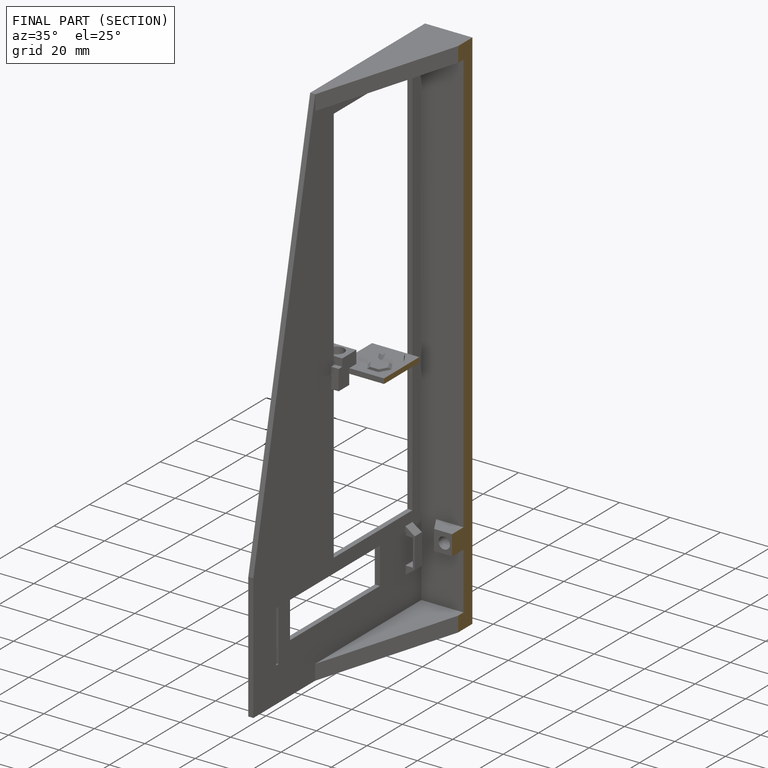
[diagram: finished part — half-section view (interior)]
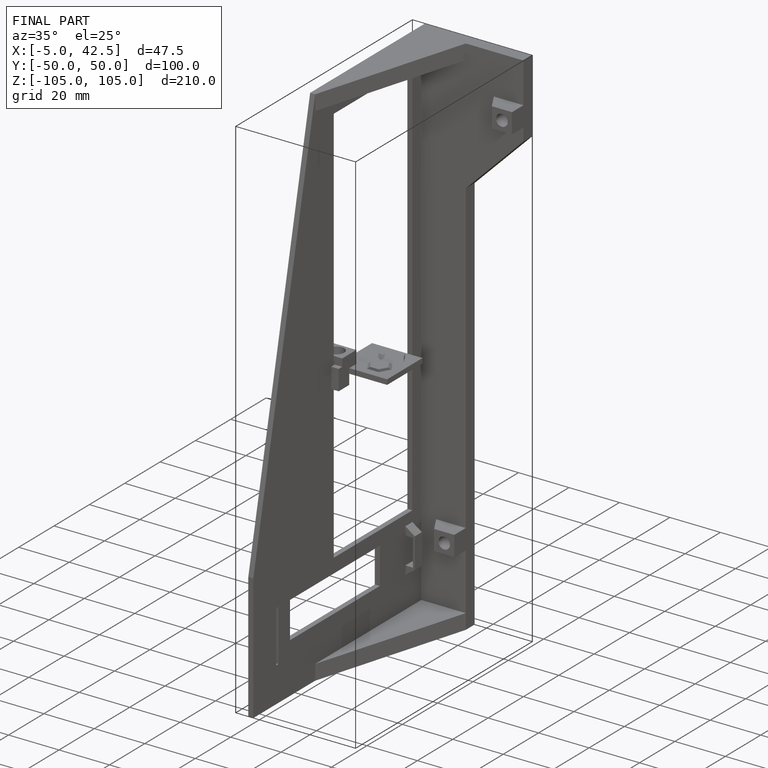
[diagram: finished part — iso view with bounding-box wireframe]
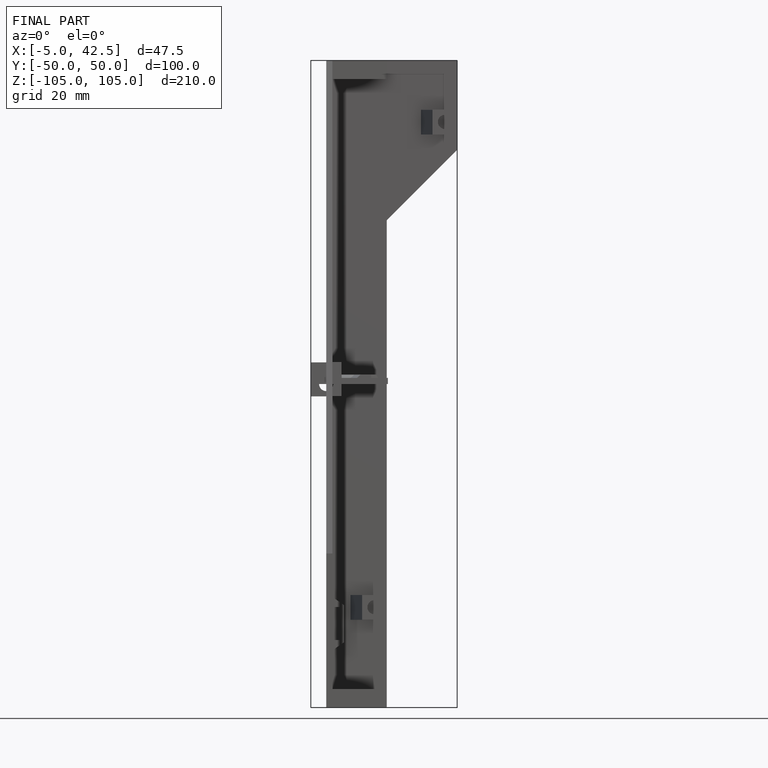
[diagram: finished part — front view with bounding-box wireframe]
